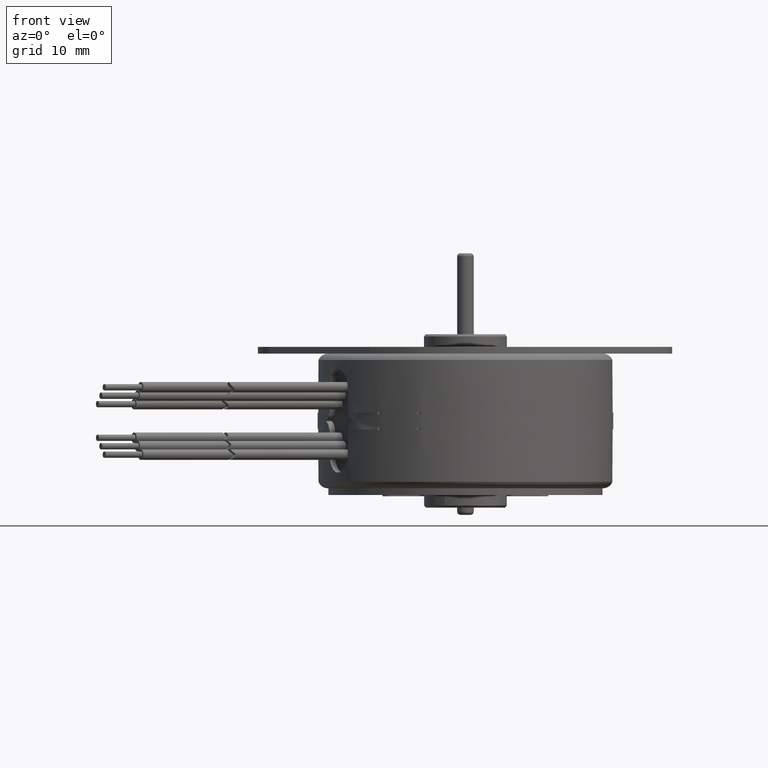
[diagram: clean part render]
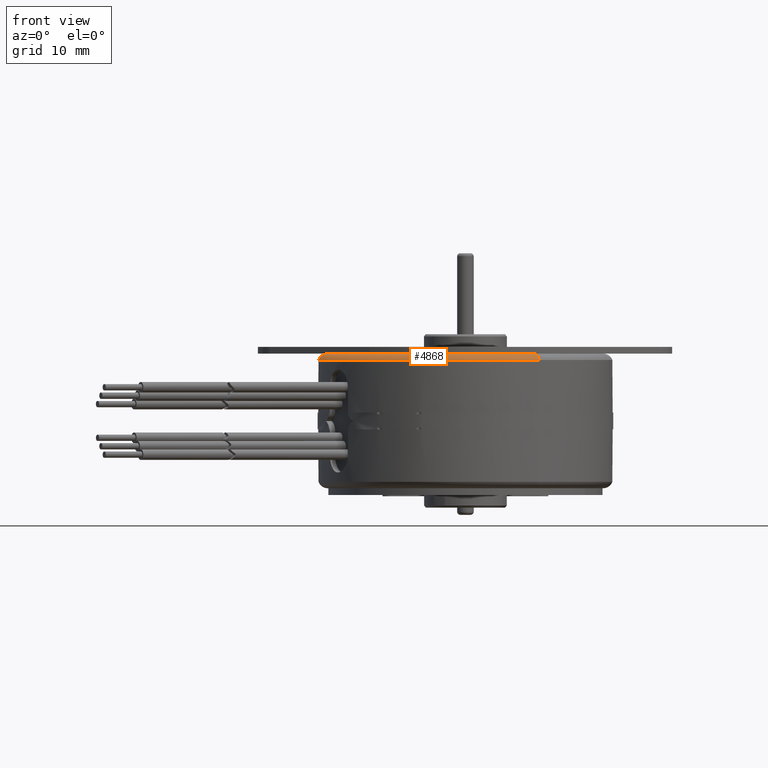
[diagram: same view with one face highlighted and labeled with its STEP entity id]
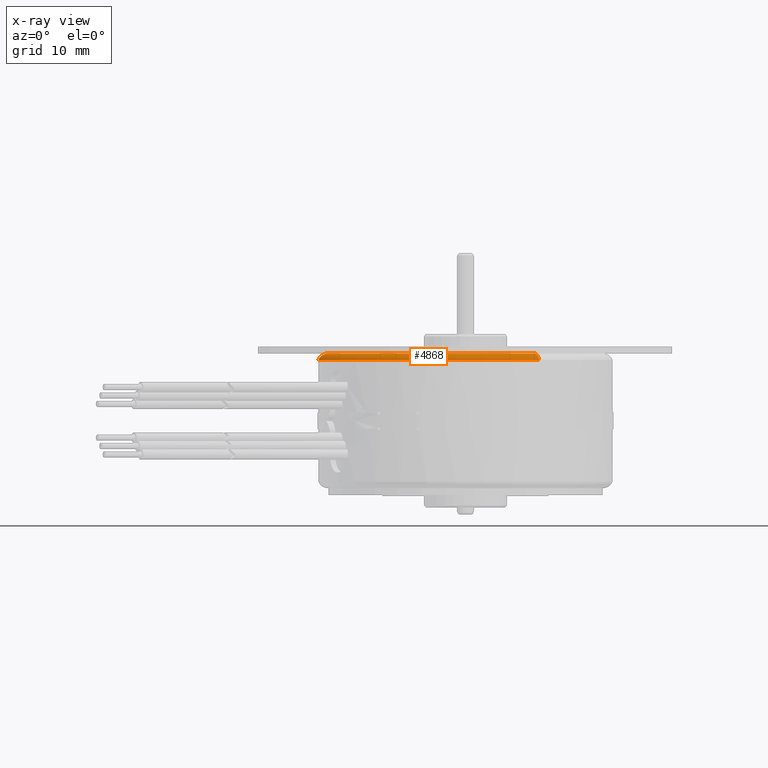
[diagram: x-ray of the same camera — body ghosted, the highlighted face saturated]
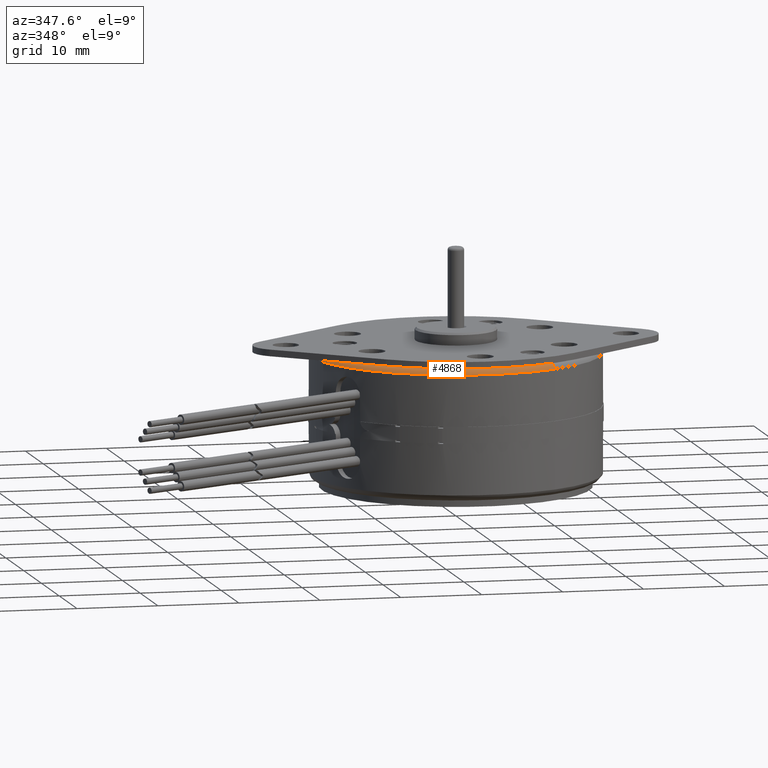
[diagram: same view with one face highlighted and labeled with its STEP entity id]
A machine part, front view. The second image highlights one B-rep face of the part: STEP entity #4868.
The next image is the same camera in x-ray: the body ghosted, the highlighted face saturated — about 0% of this face is hidden behind the body in this view.
A second angle (auxiliary view) of the same face is appended — the face is thin or edge-on in the first view.
In plain terms, the highlighted toroidal blend (fillet) surface has major radius 16.6497 mm and minor (blend) radius 1.1938 mm.
Its self-contained STEP definition (entity closure, byte-faithful):
#344=CARTESIAN_POINT('',(0.E0,0.E0,3.2E-1));
#345=DIRECTION('',(0.E0,0.E0,-1.E0));
#346=DIRECTION('',(4.999999999998E-1,-8.660254037845E-1,0.E0));
#347=AXIS2_PLACEMENT_3D('',#344,#345,#346);
#370=CARTESIAN_POINT('',(3.277500000001E-1,-5.676796521807E-1,2.73E-1));
#371=DIRECTION('',(8.660254037844E-1,5.000000000001E-1,0.E0));
#372=DIRECTION('',(0.E0,0.E0,1.E0));
#373=AXIS2_PLACEMENT_3D('',#370,#371,#372);
#375=CARTESIAN_POINT('',(0.E0,0.E0,2.895227116419E-1));
#376=DIRECTION('',(0.E0,0.E0,-1.E0));
#377=DIRECTION('',(5.E-1,-8.660254037844E-1,0.E0));
#378=AXIS2_PLACEMENT_3D('',#375,#376,#377);
#380=CARTESIAN_POINT('',(-3.277499999999E-1,5.676796521808E-1,2.73E-1));
#381=DIRECTION('',(8.660254037845E-1,4.999999999998E-1,0.E0));
#382=DIRECTION('',(-4.680851063827E-1,8.107471865214E-1,3.515470562105E-1));
#383=AXIS2_PLACEMENT_3D('',#380,#381,#382);
#3946=CARTESIAN_POINT('',(3.4975E-1,-6.057847699472E-1,2.895227116419E-1));
#3947=VERTEX_POINT('',#3946);
#3948=CARTESIAN_POINT('',(-3.4975E-1,6.057847699472E-1,2.895227116419E-1));
#3949=VERTEX_POINT('',#3948);
#4018=CARTESIAN_POINT('',(3.277499999999E-1,-5.676796521808E-1,3.2E-1));
#4019=CARTESIAN_POINT('',(-3.277499999999E-1,5.676796521808E-1,3.2E-1));
#4020=VERTEX_POINT('',#4018);
#4021=VERTEX_POINT('',#4019);
#4856=CARTESIAN_POINT('',(0.E0,0.E0,2.73E-1));
#4857=DIRECTION('',(0.E0,0.E0,-1.E0));
#4858=DIRECTION('',(5.000000000001E-1,-8.660254037844E-1,0.E0));
#4859=AXIS2_PLACEMENT_3D('',#4856,#4857,#4858);
#4860=TOROIDAL_SURFACE('',#4859,6.555E-1,4.7E-2);
#4861=ORIENTED_EDGE('',*,*,#4784,.F.);
#4862=ORIENTED_EDGE('',*,*,#4851,.T.);
#4864=ORIENTED_EDGE('',*,*,#4863,.T.);
#4865=ORIENTED_EDGE('',*,*,#4847,.T.);
#4866=EDGE_LOOP('',(#4861,#4862,#4864,#4865));
#4867=FACE_OUTER_BOUND('',#4866,.F.);
#4868=ADVANCED_FACE('',(#4867),#4860,.T.);
#348=CIRCLE('',#347,6.555E-1);
#374=CIRCLE('',#373,4.7E-2);
#379=CIRCLE('',#378,6.995E-1);
#384=CIRCLE('',#383,4.7E-2);
#4784=EDGE_CURVE('',#4020,#4021,#348,.T.);
#4847=EDGE_CURVE('',#3949,#4021,#384,.T.);
#4851=EDGE_CURVE('',#4020,#3947,#374,.T.);
#4863=EDGE_CURVE('',#3947,#3949,#379,.T.);